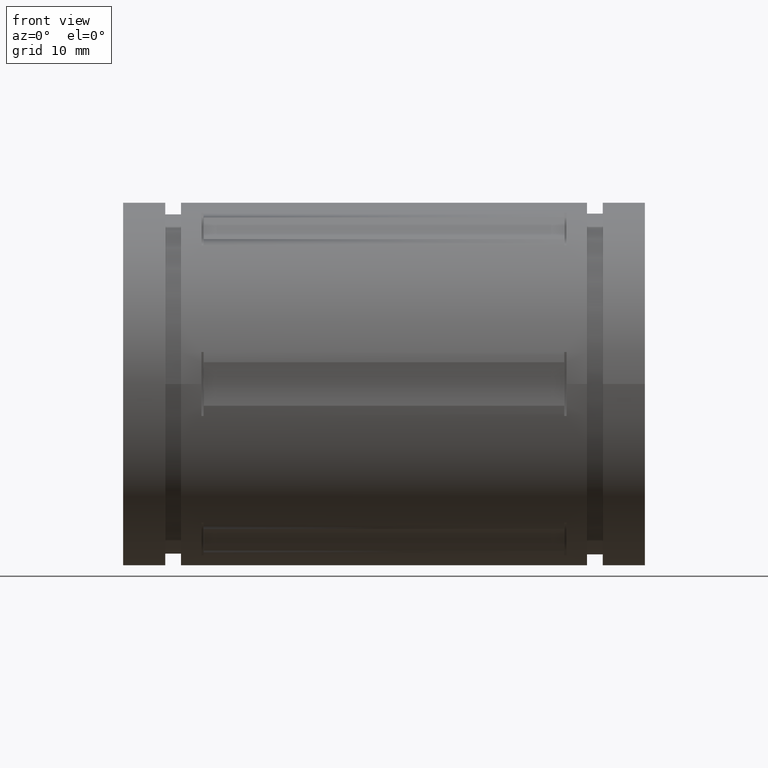
[diagram: clean part render]
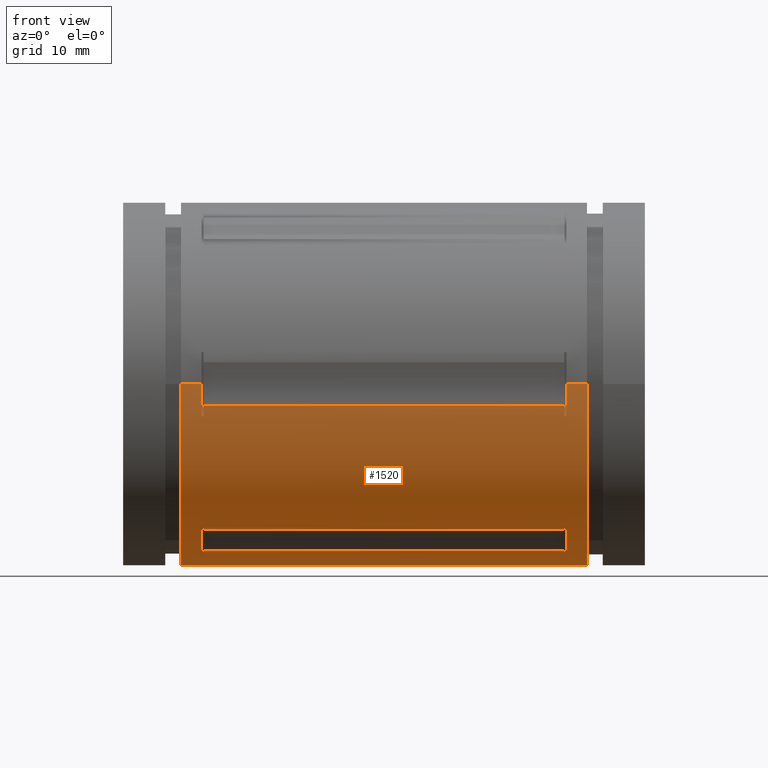
[diagram: same view with one face highlighted and labeled with its STEP entity id]
A machine part, front view. The second image highlights one B-rep face of the part: STEP entity #1520.
In plain terms, the highlighted cylindrical surface (partial cylindrical patch) has radius 19.8438 mm, axis along (1, 0, 0).
Its self-contained STEP definition (entity closure, byte-faithful):
#2 = DIRECTION ( 'NONE',  ( 0.0000000000000000000, 1.000000000000000000, 0.0000000000000000000 ) ) ;
#3 = AXIS2_PLACEMENT_3D ( 'NONE', #1349, #1343, #1336 ) ;
#4 = DIRECTION ( 'NONE',  ( 1.000000000000000000, 1.748382715945128500E-016, 0.0000000000000000000 ) ) ;
#5 = CARTESIAN_POINT ( 'NONE',  ( 1.902362204724409500, -1.707288838723899400E-017, 0.0000000000000000000 ) ) ;
#6 = CARTESIAN_POINT ( 'NONE',  ( 2.000011811023622200, -0.7812500000000000000, 9.567553118338697000E-017 ) ) ;
#14 = DIRECTION ( 'NONE',  ( 1.000000000000000000, 1.748382715945128500E-016, 0.0000000000000000000 ) ) ;
#15 = CARTESIAN_POINT ( 'NONE',  ( 2.000011811023622200, -0.7812500000000000000, 9.567553118338697000E-017 ) ) ;
#18 = DIRECTION ( 'NONE',  ( 1.000000000000000000, 1.748382715945128500E-016, 0.0000000000000000000 ) ) ;
#21 = CARTESIAN_POINT ( 'NONE',  ( 2.000011811023621800, 0.7812500000000000000, 0.0000000000000000000 ) ) ;
#23 = CARTESIAN_POINT ( 'NONE',  ( 1.902362204724409500, 0.7690019639548344400, -0.1377952652429122200 ) ) ;
#28 = EDGE_CURVE ( 'NONE', #1755, #1526, #1868, .T. ) ;
#53 = CARTESIAN_POINT ( 'NONE',  ( 1.912204724409449600, 0.7812500000000000000, 0.0000000000000000000 ) ) ;
#54 = ORIENTED_EDGE ( 'NONE', *, *, #1798, .T. ) ;
#57 = DIRECTION ( 'NONE',  ( -1.000000000000000000, 0.0000000000000000000, 0.0000000000000000000 ) ) ;
#70 = CARTESIAN_POINT ( 'NONE',  ( 1.902362204724409500, -0.4690857705081332200, -0.6247480311347855000 ) ) ;
#71 = CARTESIAN_POINT ( 'NONE',  ( 0.3472440944881889900, -0.2547244094488191900, -0.7385574031386797900 ) ) ;
#86 = CARTESIAN_POINT ( 'NONE',  ( 1.902362204724409500, -0.5039370052388204600, -0.5969916711660152600 ) ) ;
#88 = AXIS2_PLACEMENT_3D ( 'NONE', #190, #187, #184 ) ;
#91 = EDGE_CURVE ( 'NONE', #746, #807, #1842, .T. ) ;
#96 = VERTEX_POINT ( 'NONE', #896 ) ;
#97 = CARTESIAN_POINT ( 'NONE',  ( 2.000011811023621800, -0.7812500000000000000, 9.567553118338697000E-017 ) ) ;
#98 = ORIENTED_EDGE ( 'NONE', *, *, #645, .T. ) ;
#101 = ORIENTED_EDGE ( 'NONE', *, *, #174, .T. ) ;
#119 = CARTESIAN_POINT ( 'NONE',  ( 0.3476377952755944100, -0.7755905511811024300, -0.09386617824644807900 ) ) ;
#120 = DIRECTION ( 'NONE',  ( -1.748382715945128500E-016, 1.000000000000000000, 1.154631945610163000E-014 ) ) ;
#122 = DIRECTION ( 'NONE',  ( -1.000000000000000000, -1.748382715945128500E-016, -0.0000000000000000000 ) ) ;
#130 = EDGE_LOOP ( 'NONE', ( #1585, #208, #1312, #1690, #359, #1917, #580, #1130, #2018, #1557, #882, #54, #1274, #1247, #191, #1406, #1664, #335, #1905, #1728, #1162, #2013, #1535, #406 ) ) ;
#134 = CARTESIAN_POINT ( 'NONE',  ( 0.3476377952755943000, -2.888982169410695100E-016, 0.0000000000000000000 ) ) ;
#142 = EDGE_CURVE ( 'NONE', #1388, #603, #1788, .T. ) ;
#145 = VERTEX_POINT ( 'NONE', #699 ) ;
#155 = CARTESIAN_POINT ( 'NONE',  ( 0.3472440944881889900, -0.5039370078740175200, -0.5969916704569534500 ) ) ;
#157 = CARTESIAN_POINT ( 'NONE',  ( 1.902362204724409500, -0.2547244094488189700, -0.7385574031386797900 ) ) ;
#159 = DIRECTION ( 'NONE',  ( 1.000000000000000000, -0.0000000000000000000, -0.0000000000000000000 ) ) ;
#164 = DIRECTION ( 'NONE',  ( -1.000000000000000000, 0.0000000000000000000, 0.0000000000000000000 ) ) ;
#165 = CARTESIAN_POINT ( 'NONE',  ( 0.3476377952755943000, 0.4690857705081314400, -0.6247480311347866100 ) ) ;
#174 = EDGE_CURVE ( 'NONE', #1412, #1589, #1821, .T. ) ;
#181 = CARTESIAN_POINT ( 'NONE',  ( 1.912204724409448900, -0.2547244094488192400, -0.7385574031386797900 ) ) ;
#184 = DIRECTION ( 'NONE',  ( -1.748382715945128500E-016, 1.000000000000000000, 0.0000000000000000000 ) ) ;
#187 = DIRECTION ( 'NONE',  ( -1.000000000000000000, -1.748382715945128500E-016, -0.0000000000000000000 ) ) ;
#190 = CARTESIAN_POINT ( 'NONE',  ( 0.3476377952755972900, -2.888982169410690200E-016, 0.0000000000000000000 ) ) ;
#191 = ORIENTED_EDGE ( 'NONE', *, *, #1969, .F. ) ;
#208 = ORIENTED_EDGE ( 'NONE', *, *, #1367, .F. ) ;
#215 = CARTESIAN_POINT ( 'NONE',  ( 0.3476377952755971800, 0.7812499999999997800, 0.0000000000000000000 ) ) ;
#221 = EDGE_CURVE ( 'NONE', #946, #1174, #1766, .T. ) ;
#222 = VERTEX_POINT ( 'NONE', #488 ) ;
#225 = ORIENTED_EDGE ( 'NONE', *, *, #1907, .T. ) ;
#231 = ORIENTED_EDGE ( 'NONE', *, *, #1667, .T. ) ;
#232 = EDGE_CURVE ( 'NONE', #1637, #1882, #1769, .T. ) ;
#243 = AXIS2_PLACEMENT_3D ( 'NONE', #1804, #1783, #1761 ) ;
#247 = VERTEX_POINT ( 'NONE', #367 ) ;
#248 = CARTESIAN_POINT ( 'NONE',  ( 0.3476377952755943000, -0.3065047806729710400, -0.7186142093812326600 ) ) ;
#251 = DIRECTION ( 'NONE',  ( -3.496765431890257000E-016, 1.000000000000000000, 0.0000000000000000000 ) ) ;
#254 = DIRECTION ( 'NONE',  ( 1.000000000000000000, 1.748382715945128500E-016, 0.0000000000000000000 ) ) ;
#257 = CARTESIAN_POINT ( 'NONE',  ( 2.000011811023621800, 0.7812500000000000000, 0.0000000000000000000 ) ) ;
#260 = VERTEX_POINT ( 'NONE', #215 ) ;
#263 = DIRECTION ( 'NONE',  ( 1.000000000000000000, 1.748382715945128500E-016, 0.0000000000000000000 ) ) ;
#272 = AXIS2_PLACEMENT_3D ( 'NONE', #978, #976, #961 ) ;
#287 = CARTESIAN_POINT ( 'NONE',  ( 2.000011811023622200, 0.0000000000000000000, 0.0000000000000000000 ) ) ;
#294 = EDGE_CURVE ( 'NONE', #931, #380, #1708, .T. ) ;
#295 = DIRECTION ( 'NONE',  ( 0.0000000000000000000, 1.000000000000000000, 0.0000000000000000000 ) ) ;
#296 = DIRECTION ( 'NONE',  ( 1.000000000000000000, 1.748382715945128500E-016, 0.0000000000000000000 ) ) ;
#301 = CARTESIAN_POINT ( 'NONE',  ( 0.3476377952755943000, -2.888982169410695100E-016, 0.0000000000000000000 ) ) ;
#304 = CARTESIAN_POINT ( 'NONE',  ( 2.000011811023621800, -7.164473722067962300E-032, 0.0000000000000000000 ) ) ;
#320 = CARTESIAN_POINT ( 'NONE',  ( 1.912204724409449300, -0.2547244094488190200, -0.7385574031386799000 ) ) ;
#327 = DIRECTION ( 'NONE',  ( 1.000000000000000000, 1.748382715945128500E-016, 0.0000000000000000000 ) ) ;
#328 = CARTESIAN_POINT ( 'NONE',  ( 0.3476377952755944100, -0.7812500000000003300, 9.567553118338698200E-017 ) ) ;
#335 = ORIENTED_EDGE ( 'NONE', *, *, #1709, .F. ) ;
#339 = DIRECTION ( 'NONE',  ( -1.748382715945128500E-016, 1.000000000000000000, 0.0000000000000000000 ) ) ;
#340 = DIRECTION ( 'NONE',  ( 1.000000000000000000, 1.748382715945128500E-016, 0.0000000000000000000 ) ) ;
#343 = CARTESIAN_POINT ( 'NONE',  ( 0.3472440944881887700, -2.889670509062648800E-016, 0.0000000000000000000 ) ) ;
#344 = CARTESIAN_POINT ( 'NONE',  ( 0.3472440944881889900, 0.5039370078740141900, -0.5969916704569544500 ) ) ;
#346 = CARTESIAN_POINT ( 'NONE',  ( 1.902362204724409500, 0.2547244146973224900, -0.7385573980458477500 ) ) ;
#358 = DIRECTION ( 'NONE',  ( -1.000000000000000000, 0.0000000000000000000, 0.0000000000000000000 ) ) ;
#359 = ORIENTED_EDGE ( 'NONE', *, *, #1739, .T. ) ;
#364 = CARTESIAN_POINT ( 'NONE',  ( 1.912204724409448900, 0.2547244199458257900, -0.7385573929530157000 ) ) ;
#367 = CARTESIAN_POINT ( 'NONE',  ( 0.3472440944881884900, 0.7690019665286456100, -0.1377952755905515500 ) ) ;
#368 = DIRECTION ( 'NONE',  ( 1.000000000000000000, -0.0000000000000000000, -0.0000000000000000000 ) ) ;
#370 = CARTESIAN_POINT ( 'NONE',  ( 1.902362204724409500, 0.4690857705081314400, -0.6247480311347869400 ) ) ;
#378 = AXIS2_PLACEMENT_3D ( 'NONE', #301, #1541, #480 ) ;
#380 = VERTEX_POINT ( 'NONE', #1878 ) ;
#388 = ORIENTED_EDGE ( 'NONE', *, *, #1434, .T. ) ;
#392 = CARTESIAN_POINT ( 'NONE',  ( 0.3374015748031540300, 0.2547244094488196900, -0.7385574031386792400 ) ) ;
#395 = EDGE_CURVE ( 'NONE', #1412, #1331, #1655, .T. ) ;
#401 = DIRECTION ( 'NONE',  ( -1.748382715945128500E-016, 1.000000000000000000, 0.0000000000000000000 ) ) ;
#405 = DIRECTION ( 'NONE',  ( -1.000000000000000000, -1.748382715945128500E-016, -0.0000000000000000000 ) ) ;
#406 = ORIENTED_EDGE ( 'NONE', *, *, #1002, .T. ) ;
#407 = CARTESIAN_POINT ( 'NONE',  ( 0.2499881889763776700, -3.059711053283092300E-016, 0.0000000000000000000 ) ) ;
#409 = AXIS2_PLACEMENT_3D ( 'NONE', #134, #122, #120 ) ;
#411 = DIRECTION ( 'NONE',  ( 1.000000000000000000, 1.748382715945128500E-016, 0.0000000000000000000 ) ) ;
#415 = AXIS2_PLACEMENT_3D ( 'NONE', #1239, #1232, #1230 ) ;
#420 = EDGE_CURVE ( 'NONE', #702, #2053, #1629, .T. ) ;
#426 = CARTESIAN_POINT ( 'NONE',  ( 1.912204724409448900, -0.7690019665286456100, -0.1377952755905499400 ) ) ;
#446 = CARTESIAN_POINT ( 'NONE',  ( 1.902362204724409500, -1.707288838723897900E-017, 0.0000000000000000000 ) ) ;
#449 = DIRECTION ( 'NONE',  ( -1.000000000000000000, 0.0000000000000000000, 0.0000000000000000000 ) ) ;
#468 = CIRCLE ( 'NONE', #616, 0.7812500000000000000 ) ;
#480 = DIRECTION ( 'NONE',  ( -1.748382715945128500E-016, 1.000000000000000000, 0.0000000000000000000 ) ) ;
#488 = CARTESIAN_POINT ( 'NONE',  ( 0.3476377952755943000, -0.4690857705081334900, -0.6247480311347855000 ) ) ;
#495 = CIRCLE ( 'NONE', #378, 0.7812500000000000000 ) ;
#503 = VERTEX_POINT ( 'NONE', #1485 ) ;
#507 = VERTEX_POINT ( 'NONE', #1481 ) ;
#513 = AXIS2_PLACEMENT_3D ( 'NONE', #560, #558, #555 ) ;
#514 = CARTESIAN_POINT ( 'NONE',  ( 1.902362204724409500, 0.5039370078740148500, -0.5969916704569543400 ) ) ;
#519 = ORIENTED_EDGE ( 'NONE', *, *, #2009, .T. ) ;
#527 = CARTESIAN_POINT ( 'NONE',  ( 2.000011811023622200, -0.7812500000000000000, 9.567553118338697000E-017 ) ) ;
#528 = EDGE_LOOP ( 'NONE', ( #1936, #1716, #1074, #2052, #1507, #785, #101, #1886 ) ) ;
#540 = EDGE_CURVE ( 'NONE', #1775, #1218, #1582, .T. ) ;
#543 = CIRCLE ( 'NONE', #654, 0.7812500000000000000 ) ;
#552 = EDGE_LOOP ( 'NONE', ( #388, #1935, #1757, #1095 ) ) ;
#554 = VERTEX_POINT ( 'NONE', #1416 ) ;
#555 = DIRECTION ( 'NONE',  ( -1.748382715945128500E-016, 1.000000000000000000, 0.0000000000000000000 ) ) ;
#558 = DIRECTION ( 'NONE',  ( -1.000000000000000000, -1.748382715945128500E-016, -0.0000000000000000000 ) ) ;
#559 = DIRECTION ( 'NONE',  ( -1.000000000000000000, -1.748382715945128500E-016, -0.0000000000000000000 ) ) ;
#560 = CARTESIAN_POINT ( 'NONE',  ( 0.3374015748031581300, -2.906879000361306500E-016, 0.0000000000000000000 ) ) ;
#562 = EDGE_CURVE ( 'NONE', #1458, #1218, #1574, .T. ) ;
#566 = VECTOR ( 'NONE', #1649, 39.37007874015748100 ) ;
#568 = LINE ( 'NONE', #2027, #566 ) ;
#574 = AXIS2_PLACEMENT_3D ( 'NONE', #1626, #583, #1774 ) ;
#580 = ORIENTED_EDGE ( 'NONE', *, *, #1704, .T. ) ;
#583 = DIRECTION ( 'NONE',  ( -1.000000000000000000, -1.748382715945128500E-016, -0.0000000000000000000 ) ) ;
#584 = EDGE_CURVE ( 'NONE', #1794, #2035, #1576, .T. ) ;
#599 = CARTESIAN_POINT ( 'NONE',  ( 1.902362204724409500, 0.3065047806729687700, -0.7186142093812335500 ) ) ;
#603 = VERTEX_POINT ( 'NONE', #1358 ) ;
#616 = AXIS2_PLACEMENT_3D ( 'NONE', #1042, #2051, #1233 ) ;
#618 = AXIS2_PLACEMENT_3D ( 'NONE', #933, #926, #924 ) ;
#620 = EDGE_CURVE ( 'NONE', #725, #946, #1556, .T. ) ;
#623 = EDGE_CURVE ( 'NONE', #1850, #1785, #1551, .T. ) ;
#630 = DIRECTION ( 'NONE',  ( 0.0000000000000000000, 1.000000000000000000, 0.0000000000000000000 ) ) ;
#639 = VERTEX_POINT ( 'NONE', #1207 ) ;
#643 = CARTESIAN_POINT ( 'NONE',  ( 0.3472440944881889900, 0.2547244094488199100, -0.7385574031386791200 ) ) ;
#645 = EDGE_CURVE ( 'NONE', #222, #1660, #1522, .T. ) ;
#653 = CARTESIAN_POINT ( 'NONE',  ( 0.3374015748031540300, -0.5039370078740167400, -0.5969916704569536700 ) ) ;
#654 = AXIS2_PLACEMENT_3D ( 'NONE', #446, #1668, #630 ) ;
#656 = CARTESIAN_POINT ( 'NONE',  ( 1.902362204724409500, -0.7690019665286456100, -0.1377952755905501000 ) ) ;
#671 = AXIS2_PLACEMENT_3D ( 'NONE', #1254, #1250, #1248 ) ;
#672 = VERTEX_POINT ( 'NONE', #1169 ) ;
#676 = CARTESIAN_POINT ( 'NONE',  ( 0.3472440944881889900, -0.7690019665286456100, -0.1377952755905501900 ) ) ;
#678 = CARTESIAN_POINT ( 'NONE',  ( 1.902362204724409500, -0.3065047806729709900, -0.7186142093812326600 ) ) ;
#685 = DIRECTION ( 'NONE',  ( -1.000000000000000000, 0.0000000000000000000, 0.0000000000000000000 ) ) ;
#687 = CIRCLE ( 'NONE', #1315, 0.7812500000000000000 ) ;
#688 = VECTOR ( 'NONE', #1631, 39.37007874015748100 ) ;
#697 = CIRCLE ( 'NONE', #574, 0.7812500000000000000 ) ;
#699 = CARTESIAN_POINT ( 'NONE',  ( 0.3472440944881890500, -0.2547244094488190200, -0.7385574031386797900 ) ) ;
#702 = VERTEX_POINT ( 'NONE', #1167 ) ;
#708 = EDGE_CURVE ( 'NONE', #1881, #1388, #1530, .T. ) ;
#713 = CARTESIAN_POINT ( 'NONE',  ( 2.000011811023622200, 0.4690857705081312200, -0.6247480311347870500 ) ) ;
#720 = VECTOR ( 'NONE', #913, 39.37007874015748100 ) ;
#725 = VERTEX_POINT ( 'NONE', #1109 ) ;
#726 = AXIS2_PLACEMENT_3D ( 'NONE', #304, #296, #295 ) ;
#737 = EDGE_CURVE ( 'NONE', #2035, #1331, #1476, .T. ) ;
#739 = LINE ( 'NONE', #527, #720 ) ;
#746 = VERTEX_POINT ( 'NONE', #1161 ) ;
#747 = LINE ( 'NONE', #1908, #688 ) ;
#760 = DIRECTION ( 'NONE',  ( 1.000000000000000000, -0.0000000000000000000, -0.0000000000000000000 ) ) ;
#776 = VERTEX_POINT ( 'NONE', #1076 ) ;
#782 = DIRECTION ( 'NONE',  ( -1.748382715945128500E-016, 1.000000000000000000, 7.105427357601001900E-015 ) ) ;
#784 = DIRECTION ( 'NONE',  ( -1.000000000000000000, -1.748382715945128500E-016, -0.0000000000000000000 ) ) ;
#785 = ORIENTED_EDGE ( 'NONE', *, *, #395, .F. ) ;
#786 = CARTESIAN_POINT ( 'NONE',  ( 0.3374015748031540300, -2.906879000361313400E-016, 0.0000000000000000000 ) ) ;
#807 = VERTEX_POINT ( 'NONE', #1029 ) ;
#809 = CARTESIAN_POINT ( 'NONE',  ( 1.912204724409449300, 0.2547244146973224900, -0.7385573980458477500 ) ) ;
#811 = ORIENTED_EDGE ( 'NONE', *, *, #823, .T. ) ;
#822 = DIRECTION ( 'NONE',  ( 1.000000000000000000, 1.748382715945128500E-016, 0.0000000000000000000 ) ) ;
#823 = EDGE_CURVE ( 'NONE', #1526, #222, #1473, .T. ) ;
#839 = EDGE_CURVE ( 'NONE', #1643, #1660, #1450, .T. ) ;
#840 = AXIS2_PLACEMENT_3D ( 'NONE', #343, #340, #339 ) ;
#843 = CIRCLE ( 'NONE', #1363, 0.7812500000000000000 ) ;
#852 = VERTEX_POINT ( 'NONE', #942 ) ;
#863 = CARTESIAN_POINT ( 'NONE',  ( 2.000011811023621800, 0.7812500000000000000, 0.0000000000000000000 ) ) ;
#867 = DIRECTION ( 'NONE',  ( 1.000000000000000000, -0.0000000000000000000, -0.0000000000000000000 ) ) ;
#870 = DIRECTION ( 'NONE',  ( 0.0000000000000000000, 1.000000000000000000, 0.0000000000000000000 ) ) ;
#873 = CIRCLE ( 'NONE', #1890, 0.7812500000000000000 ) ;
#875 = DIRECTION ( 'NONE',  ( 1.000000000000000000, 1.748382715945128500E-016, 0.0000000000000000000 ) ) ;
#880 = CARTESIAN_POINT ( 'NONE',  ( 1.902362204724409500, -1.707288838723894500E-017, 0.0000000000000000000 ) ) ;
#882 = ORIENTED_EDGE ( 'NONE', *, *, #2037, .T. ) ;
#883 = CARTESIAN_POINT ( 'NONE',  ( 1.912204724409448900, -0.5039370026036250600, -0.5969916718750765100 ) ) ;
#891 = CARTESIAN_POINT ( 'NONE',  ( 1.912204724409449600, -0.7690019665286456100, -0.1377952755905502400 ) ) ;
#896 = CARTESIAN_POINT ( 'NONE',  ( 0.3472440944881883800, 0.7812499999999997800, 0.0000000000000000000 ) ) ;
#911 = CARTESIAN_POINT ( 'NONE',  ( 0.2499881889763778100, -0.7812500000000003300, 9.567553118338698200E-017 ) ) ;
#913 = DIRECTION ( 'NONE',  ( 1.000000000000000000, 1.748382715945128500E-016, 0.0000000000000000000 ) ) ;
#924 = DIRECTION ( 'NONE',  ( 0.0000000000000000000, 1.000000000000000000, 0.0000000000000000000 ) ) ;
#926 = DIRECTION ( 'NONE',  ( 1.000000000000000000, 1.748382715945128500E-016, 0.0000000000000000000 ) ) ;
#928 = VECTOR ( 'NONE', #1964, 39.37007874015748100 ) ;
#930 = DIRECTION ( 'NONE',  ( 1.000000000000000000, 1.748382715945128500E-016, 0.0000000000000000000 ) ) ;
#931 = VERTEX_POINT ( 'NONE', #911 ) ;
#933 = CARTESIAN_POINT ( 'NONE',  ( 1.902362204724409500, -1.707288838723898500E-017, 0.0000000000000000000 ) ) ;
#934 = VECTOR ( 'NONE', #1699, 39.37007874015748100 ) ;
#935 = EDGE_LOOP ( 'NONE', ( #2047, #1187, #811, #98, #1269, #1630, #225, #1222 ) ) ;
#937 = LINE ( 'NONE', #1397, #928 ) ;
#938 = EDGE_CURVE ( 'NONE', #1717, #807, #1424, .T. ) ;
#942 = CARTESIAN_POINT ( 'NONE',  ( 0.3374015748031540300, -0.2547244094488190200, -0.7385574031386797900 ) ) ;
#943 = VECTOR ( 'NONE', #14, 39.37007874015748100 ) ;
#946 = VERTEX_POINT ( 'NONE', #891 ) ;
#950 = EDGE_CURVE ( 'NONE', #1643, #507, #1422, .T. ) ;
#959 = LINE ( 'NONE', #6, #934 ) ;
#961 = DIRECTION ( 'NONE',  ( -1.748382715945128500E-016, 1.000000000000000000, -1.776356839400250500E-015 ) ) ;
#962 = CIRCLE ( 'NONE', #1066, 0.7812500000000000000 ) ;
#964 = LINE ( 'NONE', #21, #943 ) ;
#976 = DIRECTION ( 'NONE',  ( -1.000000000000000000, -1.748382715945128500E-016, -0.0000000000000000000 ) ) ;
#978 = CARTESIAN_POINT ( 'NONE',  ( 0.3476377952755943000, -2.888982169410695100E-016, 0.0000000000000000000 ) ) ;
#979 = CARTESIAN_POINT ( 'NONE',  ( 2.000011811023622200, 0.7755905511811023200, -0.09386617824644825900 ) ) ;
#1002 = EDGE_CURVE ( 'NONE', #1771, #380, #1401, .T. ) ;
#1029 = CARTESIAN_POINT ( 'NONE',  ( 1.902362204724409500, 0.7755905511811023200, -0.09386617824644803700 ) ) ;
#1033 = VECTOR ( 'NONE', #57, 39.37007874015748100 ) ;
#1042 = CARTESIAN_POINT ( 'NONE',  ( 0.3472440944881884900, -2.889670509062649300E-016, 0.0000000000000000000 ) ) ;
#1053 = LINE ( 'NONE', #71, #1033 ) ;
#1060 = VECTOR ( 'NONE', #159, 39.37007874015748100 ) ;
#1062 = LINE ( 'NONE', #155, #1060 ) ;
#1065 = EDGE_LOOP ( 'NONE', ( #519, #231, #1193, #1662 ) ) ;
#1066 = AXIS2_PLACEMENT_3D ( 'NONE', #5, #4, #2 ) ;
#1070 = VECTOR ( 'NONE', #164, 39.37007874015748100 ) ;
#1074 = ORIENTED_EDGE ( 'NONE', *, *, #1409, .T. ) ;
#1076 = CARTESIAN_POINT ( 'NONE',  ( 0.3472440944881890500, -0.5039370078740167400, -0.5969916704569536700 ) ) ;
#1086 = CIRCLE ( 'NONE', #409, 0.7812500000000000000 ) ;
#1090 = LINE ( 'NONE', #181, #1070 ) ;
#1092 = CIRCLE ( 'NONE', #88, 0.7812500000000000000 ) ;
#1095 = ORIENTED_EDGE ( 'NONE', *, *, #142, .T. ) ;
#1105 = DIRECTION ( 'NONE',  ( -1.000000000000000000, 0.0000000000000000000, 0.0000000000000000000 ) ) ;
#1109 = CARTESIAN_POINT ( 'NONE',  ( 1.912204724409450000, -0.7812500000000000000, 9.567553118338697000E-017 ) ) ;
#1112 = CARTESIAN_POINT ( 'NONE',  ( 1.912204724409448900, 0.5039370078740147400, -0.5969916704569543400 ) ) ;
#1116 = CARTESIAN_POINT ( 'NONE',  ( 2.000011811023622200, -0.3065047806729711600, -0.7186142093812325500 ) ) ;
#1117 = CYLINDRICAL_SURFACE ( 'NONE', #1833, 0.7812500000000000000 ) ;
#1118 = DIRECTION ( 'NONE',  ( -1.748382715945128500E-016, 1.000000000000000000, 0.0000000000000000000 ) ) ;
#1120 = DIRECTION ( 'NONE',  ( -1.000000000000000000, -1.748382715945128500E-016, -0.0000000000000000000 ) ) ;
#1126 = CARTESIAN_POINT ( 'NONE',  ( 0.3374015748031540300, -2.906879000361313400E-016, 0.0000000000000000000 ) ) ;
#1127 = FACE_BOUND ( 'NONE', #935, .T. ) ;
#1130 = ORIENTED_EDGE ( 'NONE', *, *, #1542, .T. ) ;
#1137 = EDGE_CURVE ( 'NONE', #1785, #1771, #1348, .T. ) ;
#1139 = FACE_OUTER_BOUND ( 'NONE', #130, .T. ) ;
#1141 = FACE_BOUND ( 'NONE', #552, .T. ) ;
#1142 = AXIS2_PLACEMENT_3D ( 'NONE', #880, #875, #870 ) ;
#1146 = FACE_BOUND ( 'NONE', #1065, .T. ) ;
#1152 = FACE_BOUND ( 'NONE', #528, .T. ) ;
#1161 = CARTESIAN_POINT ( 'NONE',  ( 0.3476377952755941300, 0.7755905511811020900, -0.09386617824644825900 ) ) ;
#1162 = ORIENTED_EDGE ( 'NONE', *, *, #1733, .F. ) ;
#1167 = CARTESIAN_POINT ( 'NONE',  ( 1.902362204724409500, -0.7755905511811022100, -0.09386617824644841200 ) ) ;
#1169 = CARTESIAN_POINT ( 'NONE',  ( 0.3472440944881887100, 0.5039370078740145200, -0.5969916704569543400 ) ) ;
#1172 = VECTOR ( 'NONE', #254, 39.37007874015748100 ) ;
#1174 = VERTEX_POINT ( 'NONE', #656 ) ;
#1177 = LINE ( 'NONE', #257, #1172 ) ;
#1179 = VECTOR ( 'NONE', #358, 39.37007874015748100 ) ;
#1181 = DIRECTION ( 'NONE',  ( -1.000000000000000000, -1.748382715945128500E-016, -0.0000000000000000000 ) ) ;
#1187 = ORIENTED_EDGE ( 'NONE', *, *, #28, .T. ) ;
#1193 = ORIENTED_EDGE ( 'NONE', *, *, #1987, .T. ) ;
#1197 = CARTESIAN_POINT ( 'NONE',  ( 1.912204724409449300, 0.5039370078740150700, -0.5969916704569542300 ) ) ;
#1202 = DIRECTION ( 'NONE',  ( 1.000000000000000000, 1.748382715945128500E-016, 0.0000000000000000000 ) ) ;
#1203 = LINE ( 'NONE', #344, #1179 ) ;
#1204 = CIRCLE ( 'NONE', #840, 0.7812500000000000000 ) ;
#1207 = CARTESIAN_POINT ( 'NONE',  ( 1.912204724409449600, 0.7690019639548344400, -0.1377952652429124700 ) ) ;
#1209 = LINE ( 'NONE', #364, #1236 ) ;
#1211 = CARTESIAN_POINT ( 'NONE',  ( 2.000011811023622200, -0.4690857705081337100, -0.6247480311347851600 ) ) ;
#1218 = VERTEX_POINT ( 'NONE', #599 ) ;
#1222 = ORIENTED_EDGE ( 'NONE', *, *, #1581, .T. ) ;
#1230 = DIRECTION ( 'NONE',  ( -1.748382715945128500E-016, 1.000000000000000000, 0.0000000000000000000 ) ) ;
#1231 = EDGE_CURVE ( 'NONE', #554, #503, #1306, .T. ) ;
#1232 = DIRECTION ( 'NONE',  ( 1.000000000000000000, 1.748382715945128500E-016, 0.0000000000000000000 ) ) ;
#1233 = DIRECTION ( 'NONE',  ( -1.748382715945128500E-016, 1.000000000000000000, 0.0000000000000000000 ) ) ;
#1236 = VECTOR ( 'NONE', #368, 39.37007874015748100 ) ;
#1238 = CIRCLE ( 'NONE', #1671, 0.7812500000000000000 ) ;
#1239 = CARTESIAN_POINT ( 'NONE',  ( 0.3472440944881879400, -2.889670509062650800E-016, 0.0000000000000000000 ) ) ;
#1247 = ORIENTED_EDGE ( 'NONE', *, *, #232, .F. ) ;
#1248 = DIRECTION ( 'NONE',  ( 0.0000000000000000000, 1.000000000000000000, 0.0000000000000000000 ) ) ;
#1250 = DIRECTION ( 'NONE',  ( 1.000000000000000000, 1.748382715945128500E-016, 0.0000000000000000000 ) ) ;
#1254 = CARTESIAN_POINT ( 'NONE',  ( 1.912204724409450000, -1.535203925737155000E-017, 0.0000000000000000000 ) ) ;
#1269 = ORIENTED_EDGE ( 'NONE', *, *, #839, .F. ) ;
#1274 = ORIENTED_EDGE ( 'NONE', *, *, #2006, .T. ) ;
#1306 = CIRCLE ( 'NONE', #513, 0.7812500000000000000 ) ;
#1312 = ORIENTED_EDGE ( 'NONE', *, *, #1512, .T. ) ;
#1315 = AXIS2_PLACEMENT_3D ( 'NONE', #1487, #411, #1640 ) ;
#1331 = VERTEX_POINT ( 'NONE', #514 ) ;
#1336 = DIRECTION ( 'NONE',  ( -3.496765431890257000E-016, 1.000000000000000000, 0.0000000000000000000 ) ) ;
#1341 = CARTESIAN_POINT ( 'NONE',  ( 0.3476377952755943000, 0.3065047806729684400, -0.7186142093812335500 ) ) ;
#1342 = VECTOR ( 'NONE', #685, 39.37007874015748100 ) ;
#1343 = DIRECTION ( 'NONE',  ( 1.000000000000000000, 1.748382715945128500E-016, 0.0000000000000000000 ) ) ;
#1348 = LINE ( 'NONE', #676, #1342 ) ;
#1349 = CARTESIAN_POINT ( 'NONE',  ( 1.912204724409449300, -1.535203925737165800E-017, 0.0000000000000000000 ) ) ;
#1358 = CARTESIAN_POINT ( 'NONE',  ( 0.3472440944881887100, 0.2547244094488196900, -0.7385574031386792400 ) ) ;
#1363 = AXIS2_PLACEMENT_3D ( 'NONE', #1400, #327, #1564 ) ;
#1367 = EDGE_CURVE ( 'NONE', #1789, #931, #1238, .T. ) ;
#1388 = VERTEX_POINT ( 'NONE', #392 ) ;
#1389 = DIRECTION ( 'NONE',  ( 0.0000000000000000000, 1.000000000000000000, 0.0000000000000000000 ) ) ;
#1390 = DIRECTION ( 'NONE',  ( 1.000000000000000000, 1.748382715945128500E-016, 0.0000000000000000000 ) ) ;
#1391 = CARTESIAN_POINT ( 'NONE',  ( 1.902362204724409500, -1.707288838723896000E-017, 0.0000000000000000000 ) ) ;
#1397 = CARTESIAN_POINT ( 'NONE',  ( 0.3472440944881889900, 0.7690019665286458300, -0.1377952755905526800 ) ) ;
#1400 = CARTESIAN_POINT ( 'NONE',  ( 1.912204724409449300, -1.535203925737168300E-017, 0.0000000000000000000 ) ) ;
#1401 = CIRCLE ( 'NONE', #1465, 0.7812500000000000000 ) ;
#1406 = ORIENTED_EDGE ( 'NONE', *, *, #620, .T. ) ;
#1407 = VECTOR ( 'NONE', #867, 39.37007874015748100 ) ;
#1409 = EDGE_CURVE ( 'NONE', #1458, #1794, #1209, .T. ) ;
#1412 = VERTEX_POINT ( 'NONE', #370 ) ;
#1416 = CARTESIAN_POINT ( 'NONE',  ( 0.3374015748031580200, 0.7812499999999997800, 0.0000000000000000000 ) ) ;
#1422 = LINE ( 'NONE', #883, #1407 ) ;
#1424 = CIRCLE ( 'NONE', #1142, 0.7812500000000000000 ) ;
#1434 = EDGE_CURVE ( 'NONE', #603, #672, #1204, .T. ) ;
#1438 = EDGE_CURVE ( 'NONE', #672, #1881, #1203, .T. ) ;
#1442 = DIRECTION ( 'NONE',  ( 1.000000000000000000, 1.748382715945128500E-016, 0.0000000000000000000 ) ) ;
#1443 = CARTESIAN_POINT ( 'NONE',  ( 2.000011811023622200, 0.3065047806729676600, -0.7186142093812338800 ) ) ;
#1450 = CIRCLE ( 'NONE', #618, 0.7812500000000000000 ) ;
#1458 = VERTEX_POINT ( 'NONE', #346 ) ;
#1465 = AXIS2_PLACEMENT_3D ( 'NONE', #786, #784, #782 ) ;
#1473 = CIRCLE ( 'NONE', #272, 0.7812500000000000000 ) ;
#1475 = VECTOR ( 'NONE', #1105, 39.37007874015748100 ) ;
#1476 = LINE ( 'NONE', #1112, #1475 ) ;
#1481 = CARTESIAN_POINT ( 'NONE',  ( 1.912204724409449300, -0.5039370052388204600, -0.5969916711660152600 ) ) ;
#1485 = CARTESIAN_POINT ( 'NONE',  ( 0.3374015748031559700, 0.7690019665286458300, -0.1377952755905526800 ) ) ;
#1487 = CARTESIAN_POINT ( 'NONE',  ( 0.3472440944881890500, -2.889670509062648800E-016, 0.0000000000000000000 ) ) ;
#1499 = VECTOR ( 'NONE', #1202, 39.37007874015748100 ) ;
#1500 = VERTEX_POINT ( 'NONE', #328 ) ;
#1503 = CARTESIAN_POINT ( 'NONE',  ( 0.3374015748031541900, -0.7690019665286457200, -0.1377952755905507700 ) ) ;
#1506 = AXIS2_PLACEMENT_3D ( 'NONE', #1126, #1120, #1118 ) ;
#1507 = ORIENTED_EDGE ( 'NONE', *, *, #737, .T. ) ;
#1512 = EDGE_CURVE ( 'NONE', #1789, #554, #1177, .T. ) ;
#1520 = ADVANCED_FACE ( 'NONE', ( #1139, #1152, #1146, #1141, #1127 ), #1117, .T. ) ;
#1522 = LINE ( 'NONE', #1211, #1499 ) ;
#1526 = VERTEX_POINT ( 'NONE', #248 ) ;
#1530 = CIRCLE ( 'NONE', #1506, 0.7812500000000000000 ) ;
#1535 = ORIENTED_EDGE ( 'NONE', *, *, #1137, .T. ) ;
#1541 = DIRECTION ( 'NONE',  ( -1.000000000000000000, -1.748382715945128500E-016, -0.0000000000000000000 ) ) ;
#1542 = EDGE_CURVE ( 'NONE', #260, #746, #1092, .T. ) ;
#1547 = CARTESIAN_POINT ( 'NONE',  ( 0.3374015748031540300, 0.5039370078740145200, -0.5969916704569543400 ) ) ;
#1551 = CIRCLE ( 'NONE', #415, 0.7812500000000000000 ) ;
#1556 = CIRCLE ( 'NONE', #671, 0.7812500000000000000 ) ;
#1557 = ORIENTED_EDGE ( 'NONE', *, *, #938, .F. ) ;
#1564 = DIRECTION ( 'NONE',  ( -3.496765431890257000E-016, 1.000000000000000000, 0.0000000000000000000 ) ) ;
#1574 = CIRCLE ( 'NONE', #1919, 0.7812500000000000000 ) ;
#1576 = CIRCLE ( 'NONE', #3, 0.7812500000000000000 ) ;
#1578 = VECTOR ( 'NONE', #1442, 39.37007874015748100 ) ;
#1581 = EDGE_CURVE ( 'NONE', #1906, #1597, #1090, .T. ) ;
#1582 = LINE ( 'NONE', #1443, #1578 ) ;
#1585 = ORIENTED_EDGE ( 'NONE', *, *, #294, .F. ) ;
#1589 = VERTEX_POINT ( 'NONE', #165 ) ;
#1597 = VERTEX_POINT ( 'NONE', #157 ) ;
#1607 = EDGE_CURVE ( 'NONE', #1865, #776, #1062, .T. ) ;
#1609 = EDGE_CURVE ( 'NONE', #2053, #1500, #1086, .T. ) ;
#1626 = CARTESIAN_POINT ( 'NONE',  ( 0.3374015748031540300, -2.906879000361313400E-016, 0.0000000000000000000 ) ) ;
#1629 = LINE ( 'NONE', #1663, #1648 ) ;
#1630 = ORIENTED_EDGE ( 'NONE', *, *, #950, .T. ) ;
#1631 = DIRECTION ( 'NONE',  ( 1.000000000000000000, 1.748382715945128500E-016, 0.0000000000000000000 ) ) ;
#1637 = VERTEX_POINT ( 'NONE', #97 ) ;
#1640 = DIRECTION ( 'NONE',  ( -1.748382715945128500E-016, 1.000000000000000000, 0.0000000000000000000 ) ) ;
#1643 = VERTEX_POINT ( 'NONE', #86 ) ;
#1648 = VECTOR ( 'NONE', #1651, 39.37007874015748100 ) ;
#1649 = DIRECTION ( 'NONE',  ( 1.000000000000000000, -0.0000000000000000000, -0.0000000000000000000 ) ) ;
#1651 = DIRECTION ( 'NONE',  ( -1.000000000000000000, -1.748382715945128500E-016, -0.0000000000000000000 ) ) ;
#1655 = CIRCLE ( 'NONE', #243, 0.7812500000000000000 ) ;
#1660 = VERTEX_POINT ( 'NONE', #70 ) ;
#1662 = ORIENTED_EDGE ( 'NONE', *, *, #1607, .T. ) ;
#1663 = CARTESIAN_POINT ( 'NONE',  ( 2.000011811023622200, -0.7755905511811022100, -0.09386617824644900900 ) ) ;
#1664 = ORIENTED_EDGE ( 'NONE', *, *, #221, .T. ) ;
#1667 = EDGE_CURVE ( 'NONE', #145, #852, #1053, .T. ) ;
#1668 = DIRECTION ( 'NONE',  ( 1.000000000000000000, 1.748382715945128500E-016, 0.0000000000000000000 ) ) ;
#1671 = AXIS2_PLACEMENT_3D ( 'NONE', #407, #405, #401 ) ;
#1690 = ORIENTED_EDGE ( 'NONE', *, *, #1231, .T. ) ;
#1699 = DIRECTION ( 'NONE',  ( 1.000000000000000000, 1.748382715945128500E-016, 0.0000000000000000000 ) ) ;
#1704 = EDGE_CURVE ( 'NONE', #96, #260, #964, .T. ) ;
#1706 = VERTEX_POINT ( 'NONE', #53 ) ;
#1708 = LINE ( 'NONE', #15, #1743 ) ;
#1709 = EDGE_CURVE ( 'NONE', #702, #1174, #962, .T. ) ;
#1716 = ORIENTED_EDGE ( 'NONE', *, *, #562, .F. ) ;
#1717 = VERTEX_POINT ( 'NONE', #23 ) ;
#1728 = ORIENTED_EDGE ( 'NONE', *, *, #1609, .T. ) ;
#1733 = EDGE_CURVE ( 'NONE', #1850, #1500, #959, .T. ) ;
#1739 = EDGE_CURVE ( 'NONE', #503, #247, #937, .T. ) ;
#1743 = VECTOR ( 'NONE', #18, 39.37007874015748100 ) ;
#1752 = VECTOR ( 'NONE', #449, 39.37007874015748100 ) ;
#1755 = VERTEX_POINT ( 'NONE', #678 ) ;
#1757 = ORIENTED_EDGE ( 'NONE', *, *, #708, .T. ) ;
#1761 = DIRECTION ( 'NONE',  ( 0.0000000000000000000, 1.000000000000000000, 0.0000000000000000000 ) ) ;
#1766 = LINE ( 'NONE', #426, #1752 ) ;
#1769 = CIRCLE ( 'NONE', #726, 0.7812500000000000000 ) ;
#1771 = VERTEX_POINT ( 'NONE', #1503 ) ;
#1774 = DIRECTION ( 'NONE',  ( -1.748382715945128500E-016, 1.000000000000000000, -8.881784197001252300E-016 ) ) ;
#1775 = VERTEX_POINT ( 'NONE', #1341 ) ;
#1782 = VECTOR ( 'NONE', #559, 39.37007874015748100 ) ;
#1783 = DIRECTION ( 'NONE',  ( 1.000000000000000000, 1.748382715945128500E-016, 0.0000000000000000000 ) ) ;
#1785 = VERTEX_POINT ( 'NONE', #1924 ) ;
#1788 = LINE ( 'NONE', #643, #1790 ) ;
#1789 = VERTEX_POINT ( 'NONE', #1805 ) ;
#1790 = VECTOR ( 'NONE', #760, 39.37007874015748100 ) ;
#1794 = VERTEX_POINT ( 'NONE', #809 ) ;
#1798 = EDGE_CURVE ( 'NONE', #639, #1706, #873, .T. ) ;
#1804 = CARTESIAN_POINT ( 'NONE',  ( 1.902362204724409500, -1.707288838723895400E-017, 0.0000000000000000000 ) ) ;
#1805 = CARTESIAN_POINT ( 'NONE',  ( 0.2499881889763775300, 0.7812499999999997800, 0.0000000000000000000 ) ) ;
#1811 = CARTESIAN_POINT ( 'NONE',  ( 1.912204724409449600, -1.535203925737159600E-017, 0.0000000000000000000 ) ) ;
#1821 = LINE ( 'NONE', #713, #1782 ) ;
#1824 = VECTOR ( 'NONE', #930, 39.37007874015748100 ) ;
#1827 = CARTESIAN_POINT ( 'NONE',  ( 0.3472440944881881000, -0.7812500000000003300, 9.567553118338698200E-017 ) ) ;
#1832 = EDGE_CURVE ( 'NONE', #247, #96, #468, .T. ) ;
#1833 = AXIS2_PLACEMENT_3D ( 'NONE', #287, #263, #251 ) ;
#1834 = EDGE_CURVE ( 'NONE', #1589, #1775, #495, .T. ) ;
#1842 = LINE ( 'NONE', #979, #1824 ) ;
#1850 = VERTEX_POINT ( 'NONE', #1827 ) ;
#1859 = VECTOR ( 'NONE', #1181, 39.37007874015748100 ) ;
#1865 = VERTEX_POINT ( 'NONE', #653 ) ;
#1868 = LINE ( 'NONE', #1116, #1859 ) ;
#1878 = CARTESIAN_POINT ( 'NONE',  ( 0.3374015748031541900, -0.7812500000000003300, 9.567553118338698200E-017 ) ) ;
#1881 = VERTEX_POINT ( 'NONE', #1547 ) ;
#1882 = VERTEX_POINT ( 'NONE', #863 ) ;
#1886 = ORIENTED_EDGE ( 'NONE', *, *, #1834, .T. ) ;
#1890 = AXIS2_PLACEMENT_3D ( 'NONE', #1811, #822, #1934 ) ;
#1905 = ORIENTED_EDGE ( 'NONE', *, *, #420, .T. ) ;
#1906 = VERTEX_POINT ( 'NONE', #320 ) ;
#1907 = EDGE_CURVE ( 'NONE', #507, #1906, #843, .T. ) ;
#1908 = CARTESIAN_POINT ( 'NONE',  ( 2.000011811023621800, 0.7812500000000000000, 0.0000000000000000000 ) ) ;
#1917 = ORIENTED_EDGE ( 'NONE', *, *, #1832, .T. ) ;
#1919 = AXIS2_PLACEMENT_3D ( 'NONE', #1391, #1390, #1389 ) ;
#1924 = CARTESIAN_POINT ( 'NONE',  ( 0.3472440944881887100, -0.7690019665286457200, -0.1377952755905507700 ) ) ;
#1934 = DIRECTION ( 'NONE',  ( 0.0000000000000000000, 1.000000000000000000, 0.0000000000000000000 ) ) ;
#1935 = ORIENTED_EDGE ( 'NONE', *, *, #1438, .T. ) ;
#1936 = ORIENTED_EDGE ( 'NONE', *, *, #540, .T. ) ;
#1964 = DIRECTION ( 'NONE',  ( 1.000000000000000000, -0.0000000000000000000, -0.0000000000000000000 ) ) ;
#1969 = EDGE_CURVE ( 'NONE', #725, #1637, #739, .T. ) ;
#1987 = EDGE_CURVE ( 'NONE', #852, #1865, #697, .T. ) ;
#2006 = EDGE_CURVE ( 'NONE', #1706, #1882, #747, .T. ) ;
#2009 = EDGE_CURVE ( 'NONE', #776, #145, #687, .T. ) ;
#2013 = ORIENTED_EDGE ( 'NONE', *, *, #623, .T. ) ;
#2018 = ORIENTED_EDGE ( 'NONE', *, *, #91, .T. ) ;
#2027 = CARTESIAN_POINT ( 'NONE',  ( 1.912204724409448900, 0.7690019613810232800, -0.1377952548952735600 ) ) ;
#2035 = VERTEX_POINT ( 'NONE', #1197 ) ;
#2037 = EDGE_CURVE ( 'NONE', #1717, #639, #568, .T. ) ;
#2047 = ORIENTED_EDGE ( 'NONE', *, *, #2055, .F. ) ;
#2051 = DIRECTION ( 'NONE',  ( 1.000000000000000000, 1.748382715945128500E-016, 0.0000000000000000000 ) ) ;
#2052 = ORIENTED_EDGE ( 'NONE', *, *, #584, .T. ) ;
#2053 = VERTEX_POINT ( 'NONE', #119 ) ;
#2055 = EDGE_CURVE ( 'NONE', #1755, #1597, #543, .T. ) ;